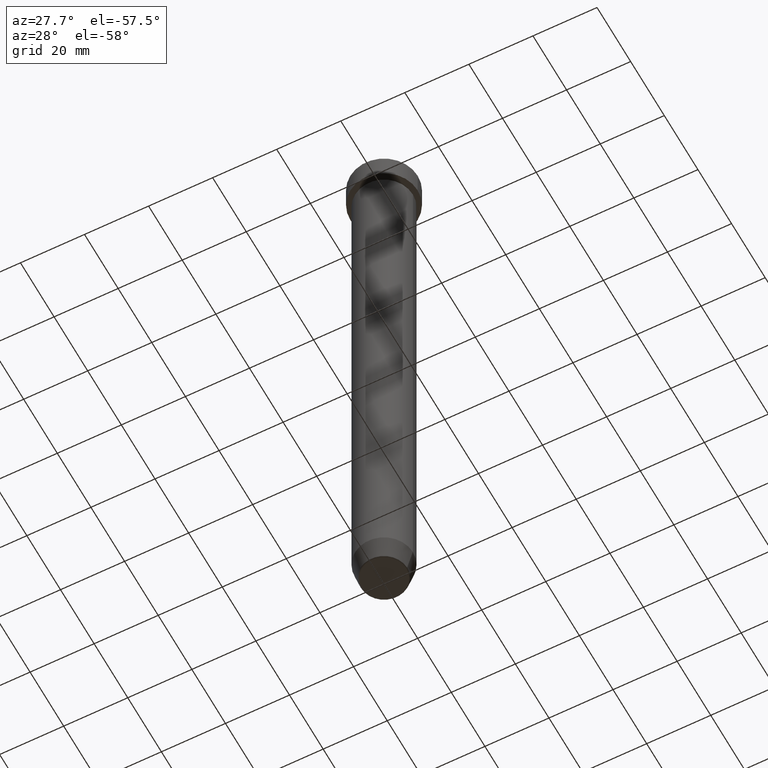
[diagram: clean part render]
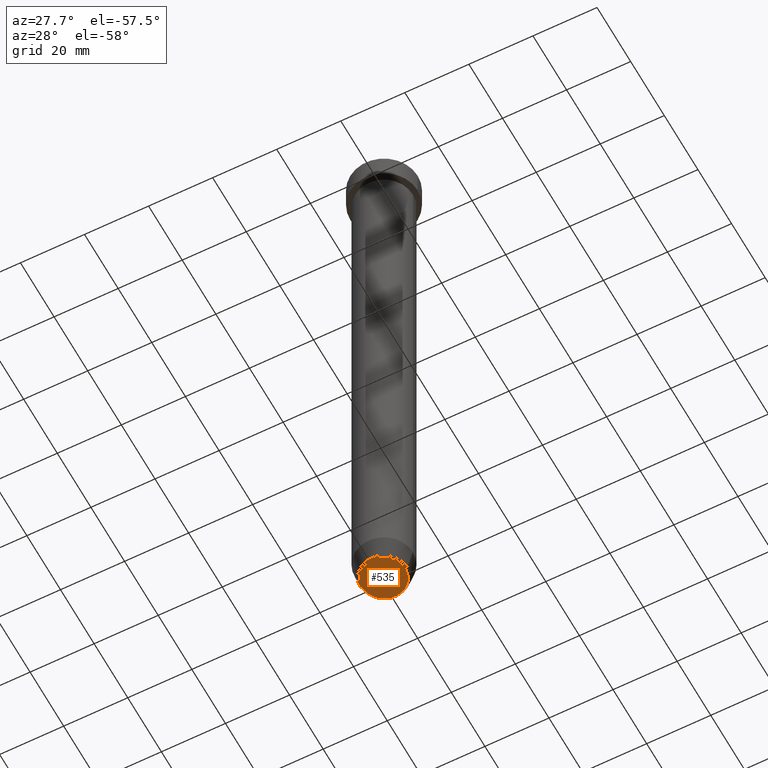
[diagram: same view with one face highlighted and labeled with its STEP entity id]
A machine part, auxiliary view. The second image highlights one B-rep face of the part: STEP entity #535.
In plain terms, the highlighted planar face has unit normal (0, -0, 1).
Its self-contained STEP definition (entity closure, byte-faithful):
#10 = CARTESIAN_POINT ( 'NONE',  ( 6.740692158992650285, 0.000000000000000000, -199.9999999999999716 ) ) ;
#13 = CIRCLE ( 'NONE', #399, 6.740692158992650285 ) ;
#34 = DIRECTION ( 'NONE',  ( 1.000000000000000000, 0.000000000000000000, 0.000000000000000000 ) ) ;
#60 = DIRECTION ( 'NONE',  ( 0.000000000000000000, 0.000000000000000000, -1.000000000000000000 ) ) ;
#93 = VERTEX_POINT ( 'NONE', #10 ) ;
#214 = PLANE ( 'NONE',  #478 ) ;
#217 = ORIENTED_EDGE ( 'NONE', *, *, #543, .T. ) ;
#236 = CARTESIAN_POINT ( 'NONE',  ( -6.740692158992650285, 8.550696569392675821E-16, -199.9999999999999716 ) ) ;
#254 = CARTESIAN_POINT ( 'NONE',  ( 0.000000000000000000, 1.836970198721029747E-14, -199.9999999999999716 ) ) ;
#301 = FACE_OUTER_BOUND ( 'NONE', #470, .T. ) ;
#310 = CIRCLE ( 'NONE', #547, 6.740692158992650285 ) ;
#351 = DIRECTION ( 'NONE',  ( 1.000000000000000000, 0.000000000000000000, 0.000000000000000000 ) ) ;
#395 = VERTEX_POINT ( 'NONE', #236 ) ;
#399 = AXIS2_PLACEMENT_3D ( 'NONE', #554, #513, #34 ) ;
#435 = DIRECTION ( 'NONE',  ( 0.000000000000000000, -0.000000000000000000, 1.000000000000000000 ) ) ;
#470 = EDGE_LOOP ( 'NONE', ( #217, #557 ) ) ;
#478 = AXIS2_PLACEMENT_3D ( 'NONE', #254, #435, #351 ) ;
#499 = EDGE_CURVE ( 'NONE', #395, #93, #310, .T. ) ;
#513 = DIRECTION ( 'NONE',  ( 0.000000000000000000, 0.000000000000000000, -1.000000000000000000 ) ) ;
#535 = ADVANCED_FACE ( 'NONE', ( #301 ), #214, .F. ) ;
#543 = EDGE_CURVE ( 'NONE', #93, #395, #13, .T. ) ;
#547 = AXIS2_PLACEMENT_3D ( 'NONE', #568, #60, #578 ) ;
#554 = CARTESIAN_POINT ( 'NONE',  ( 0.000000000000000000, 0.000000000000000000, -199.9999999999999716 ) ) ;
#557 = ORIENTED_EDGE ( 'NONE', *, *, #499, .T. ) ;
#568 = CARTESIAN_POINT ( 'NONE',  ( 0.000000000000000000, 0.000000000000000000, -199.9999999999999716 ) ) ;
#578 = DIRECTION ( 'NONE',  ( 1.000000000000000000, 0.000000000000000000, 0.000000000000000000 ) ) ;